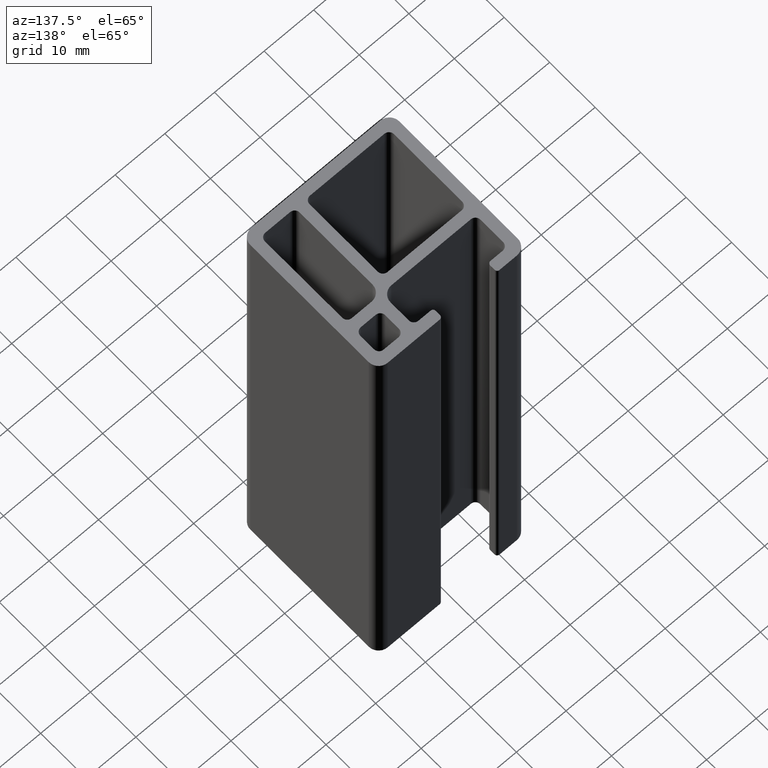
[diagram: clean part render]
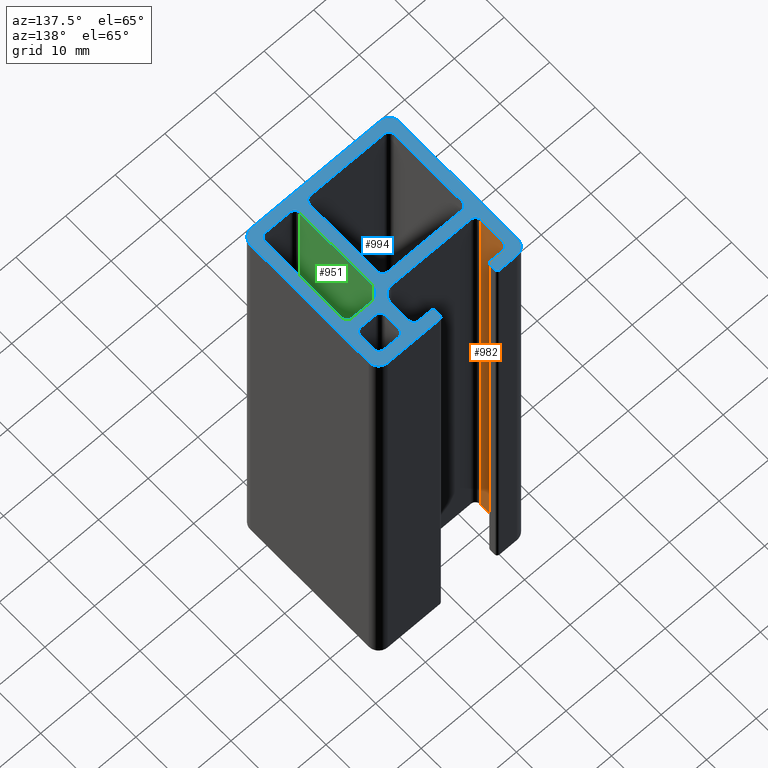
[diagram: same view with three faces highlighted in distinct colors, each labeled with its STEP entity id]
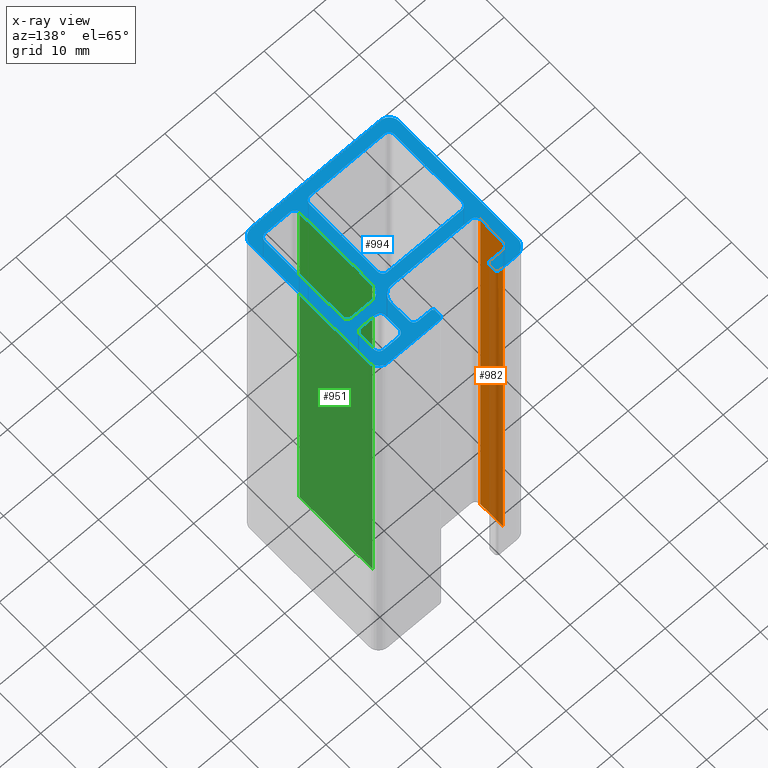
[diagram: x-ray of the same camera — body ghosted, the three highlighted faces saturated]
A machine part, auxiliary view with three faces highlighted in distinct colors.
The next image is the same camera in x-ray (body ghosted, the three faces saturated) — at least one of them is partly hidden behind the body in this view.
Their STEP definitions:

[orange] entity #982 — the highlighted planar face has unit normal (-1, -0, 0).
#130=FACE_OUTER_BOUND('',#180,.T.);
#180=EDGE_LOOP('',(#779,#780,#781,#782));
#273=LINE('',#1616,#369);
#274=LINE('',#1620,#370);
#275=LINE('',#1622,#371);
#276=LINE('',#1623,#372);
#369=VECTOR('',#1319,100.);
#370=VECTOR('',#1324,5.);
#371=VECTOR('',#1325,100.);
#372=VECTOR('',#1326,5.);
#467=VERTEX_POINT('',#1613);
#468=VERTEX_POINT('',#1615);
#469=VERTEX_POINT('',#1619);
#470=VERTEX_POINT('',#1621);
#598=EDGE_CURVE('',#468,#467,#273,.T.);
#600=EDGE_CURVE('',#469,#467,#274,.T.);
#601=EDGE_CURVE('',#470,#469,#275,.T.);
#602=EDGE_CURVE('',#468,#470,#276,.T.);
#779=ORIENTED_EDGE('',*,*,#600,.F.);
#780=ORIENTED_EDGE('',*,*,#601,.F.);
#781=ORIENTED_EDGE('',*,*,#602,.F.);
#782=ORIENTED_EDGE('',*,*,#598,.T.);
#937=PLANE('',#1072);
#982=ADVANCED_FACE('',(#130),#937,.F.);
#1072=AXIS2_PLACEMENT_3D('',#1618,#1322,#1323);
#1319=DIRECTION('',(0.,0.,1.));
#1322=DIRECTION('center_axis',(-1.,-4.44089209850062E-16,0.));
#1323=DIRECTION('ref_axis',(3.5527136788005E-16,-1.,0.));
#1324=DIRECTION('',(-4.44089209850062E-16,1.,0.));
#1325=DIRECTION('',(0.,0.,1.));
#1326=DIRECTION('',(4.44089209850062E-16,-1.,0.));
#1613=CARTESIAN_POINT('',(-13.,12.,100.));
#1615=CARTESIAN_POINT('',(-13.,12.,0.));
#1616=CARTESIAN_POINT('',(-13.,12.,0.));
#1618=CARTESIAN_POINT('Origin',(-13.,12.,0.));
#1619=CARTESIAN_POINT('',(-13.,7.,100.));
#1620=CARTESIAN_POINT('',(-13.,6.00000000019473,100.));
#1621=CARTESIAN_POINT('',(-13.,7.,0.));
#1622=CARTESIAN_POINT('',(-13.,7.,0.));
#1623=CARTESIAN_POINT('',(-13.,6.00000000019473,0.));

[blue] entity #994 — the highlighted planar face has unit normal (0, 0, 1).
#18=FACE_BOUND('',#196,.T.);
#19=FACE_BOUND('',#197,.T.);
#20=FACE_BOUND('',#198,.T.);
#21=CIRCLE('',#999,1.);
#23=CIRCLE('',#1003,1.);
#25=CIRCLE('',#1007,1.);
#27=CIRCLE('',#1011,2.);
#29=CIRCLE('',#1014,1.);
#31=CIRCLE('',#1018,1.);
#33=CIRCLE('',#1022,1.);
#35=CIRCLE('',#1026,1.);
#37=CIRCLE('',#1031,1.);
#39=CIRCLE('',#1035,1.);
#41=CIRCLE('',#1039,1.);
#43=CIRCLE('',#1043,1.);
#45=CIRCLE('',#1047,2.);
#47=CIRCLE('',#1051,1.);
#49=CIRCLE('',#1055,0.5);
#51=CIRCLE('',#1059,0.5);
#53=CIRCLE('',#1062,0.5);
#55=CIRCLE('',#1066,0.5);
#57=CIRCLE('',#1070,1.);
#59=CIRCLE('',#1074,1.);
#65=CIRCLE('',#1084,2.00000000847673);
#66=CIRCLE('',#1087,2.00000000847673);
#67=CIRCLE('',#1090,2.00000000847673);
#68=CIRCLE('',#1093,2.00000000847673);
#142=FACE_OUTER_BOUND('',#195,.T.);
#195=EDGE_LOOP('',(#871,#872,#873,#874,#875,#876,#877,#878,#879,#880,#881,
#882,#883,#884,#885,#886,#887,#888,#889,#890,#891,#892,#893,#894));
#196=EDGE_LOOP('',(#895,#896,#897,#898,#899,#900,#901,#902));
#197=EDGE_LOOP('',(#903,#904,#905,#906,#907,#908,#909,#910));
#198=EDGE_LOOP('',(#911,#912,#913,#914,#915,#916,#917,#918));
#199=LINE('',#1393,#295);
#204=LINE('',#1407,#300);
#208=LINE('',#1419,#304);
#212=LINE('',#1431,#308);
#217=LINE('',#1449,#313);
#221=LINE('',#1461,#317);
#225=LINE('',#1473,#321);
#229=LINE('',#1484,#325);
#231=LINE('',#1489,#327);
#236=LINE('',#1503,#332);
#240=LINE('',#1515,#336);
#244=LINE('',#1527,#340);
#247=LINE('',#1537,#343);
#252=LINE('',#1551,#348);
#256=LINE('',#1563,#352);
#260=LINE('',#1575,#356);
#266=LINE('',#1596,#362);
#270=LINE('',#1608,#366);
#274=LINE('',#1620,#370);
#277=LINE('',#1629,#373);
#285=LINE('',#1652,#381);
#287=LINE('',#1659,#383);
#290=LINE('',#1667,#386);
#293=LINE('',#1675,#389);
#295=VECTOR('',#1099,4.);
#300=VECTOR('',#1112,17.);
#304=VECTOR('',#1124,5.);
#308=VECTOR('',#1136,16.);
#313=VECTOR('',#1155,15.);
#317=VECTOR('',#1167,15.);
#321=VECTOR('',#1179,15.);
#325=VECTOR('',#1191,15.);
#327=VECTOR('',#1195,3.);
#332=VECTOR('',#1208,2.99999999999999);
#336=VECTOR('',#1220,3.);
#340=VECTOR('',#1232,3.);
#343=VECTOR('',#1243,16.);
#348=VECTOR('',#1256,4.);
#352=VECTOR('',#1268,2.5);
#356=VECTOR('',#1280,0.999999999999999);
#362=VECTOR('',#1300,0.999999999999999);
#366=VECTOR('',#1312,2.5);
#370=VECTOR('',#1324,5.);
#373=VECTOR('',#1335,10.4999999917376);
#381=VECTOR('',#1355,3.49999999152327);
#383=VECTOR('',#1363,25.9999999739653);
#386=VECTOR('',#1372,25.9999999830465);
#389=VECTOR('',#1381,25.9999999741351);
#391=VERTEX_POINT('',#1391);
#392=VERTEX_POINT('',#1392);
#395=VERTEX_POINT('',#1400);
#397=VERTEX_POINT('',#1406);
#399=VERTEX_POINT('',#1412);
#401=VERTEX_POINT('',#1418);
#403=VERTEX_POINT('',#1424);
#405=VERTEX_POINT('',#1430);
#407=VERTEX_POINT('',#1439);
#408=VERTEX_POINT('',#1440);
#411=VERTEX_POINT('',#1448);
#413=VERTEX_POINT('',#1454);
#415=VERTEX_POINT('',#1460);
#417=VERTEX_POINT('',#1466);
#419=VERTEX_POINT('',#1472);
#421=VERTEX_POINT('',#1478);
#423=VERTEX_POINT('',#1487);
#424=VERTEX_POINT('',#1488);
#427=VERTEX_POINT('',#1496);
#429=VERTEX_POINT('',#1502);
#431=VERTEX_POINT('',#1508);
#433=VERTEX_POINT('',#1514);
#435=VERTEX_POINT('',#1520);
#437=VERTEX_POINT('',#1526);
#439=VERTEX_POINT('',#1535);
#440=VERTEX_POINT('',#1536);
#443=VERTEX_POINT('',#1544);
#445=VERTEX_POINT('',#1550);
#447=VERTEX_POINT('',#1556);
#449=VERTEX_POINT('',#1562);
#451=VERTEX_POINT('',#1568);
#453=VERTEX_POINT('',#1574);
#455=VERTEX_POINT('',#1580);
#457=VERTEX_POINT('',#1586);
#458=VERTEX_POINT('',#1587);
#461=VERTEX_POINT('',#1595);
#463=VERTEX_POINT('',#1601);
#465=VERTEX_POINT('',#1607);
#467=VERTEX_POINT('',#1613);
#469=VERTEX_POINT('',#1619);
#471=VERTEX_POINT('',#1628);
#480=VERTEX_POINT('',#1650);
#481=VERTEX_POINT('',#1654);
#482=VERTEX_POINT('',#1658);
#483=VERTEX_POINT('',#1662);
#484=VERTEX_POINT('',#1666);
#485=VERTEX_POINT('',#1670);
#486=VERTEX_POINT('',#1674);
#487=EDGE_CURVE('',#391,#392,#199,.T.);
#491=EDGE_CURVE('',#392,#395,#21,.T.);
#494=EDGE_CURVE('',#395,#397,#204,.T.);
#497=EDGE_CURVE('',#397,#399,#23,.T.);
#500=EDGE_CURVE('',#399,#401,#208,.T.);
#503=EDGE_CURVE('',#401,#403,#25,.T.);
#506=EDGE_CURVE('',#403,#405,#212,.T.);
#509=EDGE_CURVE('',#405,#391,#27,.T.);
#511=EDGE_CURVE('',#407,#408,#29,.T.);
#515=EDGE_CURVE('',#411,#407,#217,.T.);
#518=EDGE_CURVE('',#413,#411,#31,.T.);
#521=EDGE_CURVE('',#415,#413,#221,.T.);
#524=EDGE_CURVE('',#417,#415,#33,.T.);
#527=EDGE_CURVE('',#419,#417,#225,.T.);
#530=EDGE_CURVE('',#421,#419,#35,.T.);
#533=EDGE_CURVE('',#408,#421,#229,.T.);
#535=EDGE_CURVE('',#423,#424,#231,.T.);
#539=EDGE_CURVE('',#424,#427,#37,.T.);
#542=EDGE_CURVE('',#427,#429,#236,.T.);
#545=EDGE_CURVE('',#429,#431,#39,.T.);
#548=EDGE_CURVE('',#431,#433,#240,.T.);
#551=EDGE_CURVE('',#433,#435,#41,.T.);
#554=EDGE_CURVE('',#435,#437,#244,.T.);
#557=EDGE_CURVE('',#437,#423,#43,.T.);
#559=EDGE_CURVE('',#439,#440,#247,.T.);
#563=EDGE_CURVE('',#443,#439,#45,.T.);
#566=EDGE_CURVE('',#445,#443,#252,.T.);
#569=EDGE_CURVE('',#447,#445,#47,.T.);
#572=EDGE_CURVE('',#449,#447,#256,.T.);
#575=EDGE_CURVE('',#451,#449,#49,.T.);
#578=EDGE_CURVE('',#453,#451,#260,.T.);
#581=EDGE_CURVE('',#455,#453,#51,.T.);
#584=EDGE_CURVE('',#457,#458,#53,.T.);
#588=EDGE_CURVE('',#461,#457,#266,.T.);
#591=EDGE_CURVE('',#463,#461,#55,.T.);
#594=EDGE_CURVE('',#465,#463,#270,.T.);
#597=EDGE_CURVE('',#467,#465,#57,.T.);
#600=EDGE_CURVE('',#469,#467,#274,.T.);
#603=EDGE_CURVE('',#440,#469,#59,.T.);
#605=EDGE_CURVE('',#455,#471,#277,.T.);
#617=EDGE_CURVE('',#480,#458,#285,.T.);
#618=EDGE_CURVE('',#471,#481,#65,.T.);
#620=EDGE_CURVE('',#481,#482,#287,.T.);
#622=EDGE_CURVE('',#482,#483,#66,.T.);
#624=EDGE_CURVE('',#483,#484,#290,.T.);
#626=EDGE_CURVE('',#484,#485,#67,.T.);
#628=EDGE_CURVE('',#485,#486,#293,.T.);
#630=EDGE_CURVE('',#486,#480,#68,.T.);
#871=ORIENTED_EDGE('',*,*,#584,.T.);
#872=ORIENTED_EDGE('',*,*,#617,.F.);
#873=ORIENTED_EDGE('',*,*,#630,.F.);
#874=ORIENTED_EDGE('',*,*,#628,.F.);
#875=ORIENTED_EDGE('',*,*,#626,.F.);
#876=ORIENTED_EDGE('',*,*,#624,.F.);
#877=ORIENTED_EDGE('',*,*,#622,.F.);
#878=ORIENTED_EDGE('',*,*,#620,.F.);
#879=ORIENTED_EDGE('',*,*,#618,.F.);
#880=ORIENTED_EDGE('',*,*,#605,.F.);
#881=ORIENTED_EDGE('',*,*,#581,.T.);
#882=ORIENTED_EDGE('',*,*,#578,.T.);
#883=ORIENTED_EDGE('',*,*,#575,.T.);
#884=ORIENTED_EDGE('',*,*,#572,.T.);
#885=ORIENTED_EDGE('',*,*,#569,.T.);
#886=ORIENTED_EDGE('',*,*,#566,.T.);
#887=ORIENTED_EDGE('',*,*,#563,.T.);
#888=ORIENTED_EDGE('',*,*,#559,.T.);
#889=ORIENTED_EDGE('',*,*,#603,.T.);
#890=ORIENTED_EDGE('',*,*,#600,.T.);
#891=ORIENTED_EDGE('',*,*,#597,.T.);
#892=ORIENTED_EDGE('',*,*,#594,.T.);
#893=ORIENTED_EDGE('',*,*,#591,.T.);
#894=ORIENTED_EDGE('',*,*,#588,.T.);
#895=ORIENTED_EDGE('',*,*,#487,.T.);
#896=ORIENTED_EDGE('',*,*,#491,.T.);
#897=ORIENTED_EDGE('',*,*,#494,.T.);
#898=ORIENTED_EDGE('',*,*,#497,.T.);
#899=ORIENTED_EDGE('',*,*,#500,.T.);
#900=ORIENTED_EDGE('',*,*,#503,.T.);
#901=ORIENTED_EDGE('',*,*,#506,.T.);
#902=ORIENTED_EDGE('',*,*,#509,.T.);
#903=ORIENTED_EDGE('',*,*,#511,.T.);
#904=ORIENTED_EDGE('',*,*,#533,.T.);
#905=ORIENTED_EDGE('',*,*,#530,.T.);
#906=ORIENTED_EDGE('',*,*,#527,.T.);
#907=ORIENTED_EDGE('',*,*,#524,.T.);
#908=ORIENTED_EDGE('',*,*,#521,.T.);
#909=ORIENTED_EDGE('',*,*,#518,.T.);
#910=ORIENTED_EDGE('',*,*,#515,.T.);
#911=ORIENTED_EDGE('',*,*,#535,.T.);
#912=ORIENTED_EDGE('',*,*,#539,.T.);
#913=ORIENTED_EDGE('',*,*,#542,.T.);
#914=ORIENTED_EDGE('',*,*,#545,.T.);
#915=ORIENTED_EDGE('',*,*,#548,.T.);
#916=ORIENTED_EDGE('',*,*,#551,.T.);
#917=ORIENTED_EDGE('',*,*,#554,.T.);
#918=ORIENTED_EDGE('',*,*,#557,.T.);
#944=PLANE('',#1094);
#994=ADVANCED_FACE('',(#142,#18,#19,#20),#944,.T.);
#999=AXIS2_PLACEMENT_3D('',#1401,#1105,#1106);
#1003=AXIS2_PLACEMENT_3D('',#1413,#1117,#1118);
#1007=AXIS2_PLACEMENT_3D('',#1425,#1129,#1130);
#1011=AXIS2_PLACEMENT_3D('',#1436,#1141,#1142);
#1014=AXIS2_PLACEMENT_3D('',#1441,#1147,#1148);
#1018=AXIS2_PLACEMENT_3D('',#1455,#1160,#1161);
#1022=AXIS2_PLACEMENT_3D('',#1467,#1172,#1173);
#1026=AXIS2_PLACEMENT_3D('',#1479,#1184,#1185);
#1031=AXIS2_PLACEMENT_3D('',#1497,#1201,#1202);
#1035=AXIS2_PLACEMENT_3D('',#1509,#1213,#1214);
#1039=AXIS2_PLACEMENT_3D('',#1521,#1225,#1226);
#1043=AXIS2_PLACEMENT_3D('',#1532,#1237,#1238);
#1047=AXIS2_PLACEMENT_3D('',#1545,#1249,#1250);
#1051=AXIS2_PLACEMENT_3D('',#1557,#1261,#1262);
#1055=AXIS2_PLACEMENT_3D('',#1569,#1273,#1274);
#1059=AXIS2_PLACEMENT_3D('',#1581,#1285,#1286);
#1062=AXIS2_PLACEMENT_3D('',#1588,#1292,#1293);
#1066=AXIS2_PLACEMENT_3D('',#1602,#1305,#1306);
#1070=AXIS2_PLACEMENT_3D('',#1614,#1317,#1318);
#1074=AXIS2_PLACEMENT_3D('',#1625,#1329,#1330);
#1084=AXIS2_PLACEMENT_3D('',#1655,#1358,#1359);
#1087=AXIS2_PLACEMENT_3D('',#1663,#1367,#1368);
#1090=AXIS2_PLACEMENT_3D('',#1671,#1376,#1377);
#1093=AXIS2_PLACEMENT_3D('',#1678,#1385,#1386);
#1094=AXIS2_PLACEMENT_3D('',#1679,#1387,#1388);
#1099=DIRECTION('',(1.,2.77555756156289E-16,0.));
#1105=DIRECTION('center_axis',(0.,0.,-1.));
#1106=DIRECTION('ref_axis',(-1.,0.,0.));
#1112=DIRECTION('',(5.2245789394125E-16,-1.,0.));
#1117=DIRECTION('center_axis',(0.,0.,-1.));
#1118=DIRECTION('ref_axis',(0.,1.,0.));
#1124=DIRECTION('',(-1.,0.,0.));
#1129=DIRECTION('center_axis',(0.,0.,-1.));
#1130=DIRECTION('ref_axis',(1.,0.,0.));
#1136=DIRECTION('',(0.,1.,0.));
#1141=DIRECTION('center_axis',(0.,0.,-1.));
#1142=DIRECTION('ref_axis',(0.,-1.,0.));
#1147=DIRECTION('center_axis',(0.,0.,-1.));
#1148=DIRECTION('ref_axis',(1.,1.11022302462516E-15,0.));
#1155=DIRECTION('',(1.,7.7715611723761E-16,0.));
#1160=DIRECTION('center_axis',(0.,0.,-1.));
#1161=DIRECTION('ref_axis',(0.,1.,0.));
#1167=DIRECTION('',(-5.9211894646675E-16,1.,0.));
#1172=DIRECTION('center_axis',(0.,0.,-1.));
#1173=DIRECTION('ref_axis',(-1.,0.,0.));
#1179=DIRECTION('',(-1.,-5.9211894646675E-16,0.));
#1184=DIRECTION('center_axis',(0.,0.,-1.));
#1185=DIRECTION('ref_axis',(1.11022302462516E-15,-1.,0.));
#1191=DIRECTION('',(7.77156117237609E-16,-1.,0.));
#1195=DIRECTION('',(0.,1.,0.));
#1201=DIRECTION('center_axis',(0.,0.,-1.));
#1202=DIRECTION('ref_axis',(0.,-1.,0.));
#1208=DIRECTION('',(1.,2.22044604925032E-15,0.));
#1213=DIRECTION('center_axis',(0.,0.,-1.));
#1214=DIRECTION('ref_axis',(-1.,0.,0.));
#1220=DIRECTION('',(2.22044604925031E-15,-1.,0.));
#1225=DIRECTION('center_axis',(0.,0.,-1.));
#1226=DIRECTION('ref_axis',(0.,1.,0.));
#1232=DIRECTION('',(-1.,-3.70074341541719E-16,0.));
#1237=DIRECTION('center_axis',(0.,0.,-1.));
#1238=DIRECTION('ref_axis',(1.,0.,0.));
#1243=DIRECTION('',(-1.,-2.77555756156289E-16,0.));
#1249=DIRECTION('center_axis',(0.,0.,-1.));
#1250=DIRECTION('ref_axis',(2.77555756156289E-16,-1.,0.));
#1256=DIRECTION('',(2.77555756156289E-16,-1.,0.));
#1261=DIRECTION('center_axis',(0.,0.,-1.));
#1262=DIRECTION('ref_axis',(1.,0.,0.));
#1268=DIRECTION('',(1.,1.77635683940025E-15,0.));
#1273=DIRECTION('center_axis',(0.,0.,1.));
#1274=DIRECTION('ref_axis',(1.,0.,0.));
#1280=DIRECTION('',(-5.55111512312579E-16,-1.,0.));
#1285=DIRECTION('center_axis',(0.,0.,1.));
#1286=DIRECTION('ref_axis',(0.,-1.,0.));
#1292=DIRECTION('center_axis',(0.,0.,1.));
#1293=DIRECTION('ref_axis',(-1.,0.,0.));
#1300=DIRECTION('',(-1.11022302462516E-15,1.,0.));
#1305=DIRECTION('center_axis',(0.,0.,1.));
#1306=DIRECTION('ref_axis',(0.,1.,0.));
#1312=DIRECTION('',(1.,-1.77635683940025E-15,0.));
#1317=DIRECTION('center_axis',(0.,0.,-1.));
#1318=DIRECTION('ref_axis',(0.,1.,0.));
#1324=DIRECTION('',(-4.44089209850062E-16,1.,0.));
#1329=DIRECTION('center_axis',(0.,0.,-1.));
#1330=DIRECTION('ref_axis',(-1.,0.,0.));
#1335=DIRECTION('',(1.,-1.51799940237017E-11,0.));
#1355=DIRECTION('',(1.,-1.51799940237017E-11,0.));
#1358=DIRECTION('center_axis',(0.,0.,-1.));
#1359=DIRECTION('ref_axis',(-1.,3.84254848573491E-10,0.));
#1363=DIRECTION('',(2.97539770897479E-11,-1.,0.));
#1367=DIRECTION('center_axis',(0.,0.,-1.));
#1368=DIRECTION('ref_axis',(0.,1.,0.));
#1372=DIRECTION('',(-1.,0.,0.));
#1376=DIRECTION('center_axis',(0.,0.,-1.));
#1377=DIRECTION('ref_axis',(1.,0.,0.));
#1381=DIRECTION('',(0.,1.,0.));
#1385=DIRECTION('center_axis',(0.,0.,-1.));
#1386=DIRECTION('ref_axis',(0.,-1.,0.));
#1387=DIRECTION('center_axis',(0.,0.,1.));
#1388=DIRECTION('ref_axis',(1.,0.,0.));
#1391=CARTESIAN_POINT('',(8.,6.00000000000001,100.));
#1392=CARTESIAN_POINT('',(12.,6.00000000000001,100.));
#1393=CARTESIAN_POINT('',(6.,6.00000000000001,100.));
#1400=CARTESIAN_POINT('',(13.,5.00000000000001,100.));
#1401=CARTESIAN_POINT('Origin',(12.,5.00000000000001,100.));
#1406=CARTESIAN_POINT('',(13.,-12.,100.));
#1407=CARTESIAN_POINT('',(13.,-5.99999999980526,100.));
#1412=CARTESIAN_POINT('',(12.,-13.,100.));
#1413=CARTESIAN_POINT('Origin',(12.,-12.,100.));
#1418=CARTESIAN_POINT('',(7.,-13.,100.));
#1419=CARTESIAN_POINT('',(3.5,-13.,100.));
#1424=CARTESIAN_POINT('',(6.,-12.,100.));
#1425=CARTESIAN_POINT('Origin',(7.,-12.,100.));
#1430=CARTESIAN_POINT('',(6.,4.,100.));
#1431=CARTESIAN_POINT('',(6.,2.00000000019474,100.));
#1436=CARTESIAN_POINT('Origin',(8.,4.,100.));
#1439=CARTESIAN_POINT('',(3.,4.00000000000001,100.));
#1440=CARTESIAN_POINT('',(4.,3.00000000000001,100.));
#1441=CARTESIAN_POINT('Origin',(3.,3.00000000000001,100.));
#1448=CARTESIAN_POINT('',(-12.,4.,100.));
#1449=CARTESIAN_POINT('',(1.5,4.00000000000001,100.));
#1454=CARTESIAN_POINT('',(-13.,3.,100.));
#1455=CARTESIAN_POINT('Origin',(-12.,3.,100.));
#1460=CARTESIAN_POINT('',(-13.,-12.,100.));
#1461=CARTESIAN_POINT('',(-13.,1.50000000019473,100.));
#1466=CARTESIAN_POINT('',(-12.,-13.,100.));
#1467=CARTESIAN_POINT('Origin',(-12.,-12.,100.));
#1472=CARTESIAN_POINT('',(3.00000000000001,-13.,100.));
#1473=CARTESIAN_POINT('',(-6.,-13.,100.));
#1478=CARTESIAN_POINT('',(4.00000000000001,-12.,100.));
#1479=CARTESIAN_POINT('Origin',(3.00000000000001,-12.,100.));
#1484=CARTESIAN_POINT('',(4.,-5.99999999980526,100.));
#1487=CARTESIAN_POINT('',(8.,9.,100.));
#1488=CARTESIAN_POINT('',(8.,12.,100.));
#1489=CARTESIAN_POINT('',(8.,6.00000000019473,100.));
#1496=CARTESIAN_POINT('',(9.,13.,100.));
#1497=CARTESIAN_POINT('Origin',(9.,12.,100.));
#1502=CARTESIAN_POINT('',(12.,13.,100.));
#1503=CARTESIAN_POINT('',(5.99999999999998,13.,100.));
#1508=CARTESIAN_POINT('',(13.,12.,100.));
#1509=CARTESIAN_POINT('Origin',(12.,12.,100.));
#1514=CARTESIAN_POINT('',(13.,9.,100.));
#1515=CARTESIAN_POINT('',(13.,4.50000000019475,100.));
#1520=CARTESIAN_POINT('',(12.,8.,100.));
#1521=CARTESIAN_POINT('Origin',(12.,9.,100.));
#1526=CARTESIAN_POINT('',(9.,8.,100.));
#1527=CARTESIAN_POINT('',(4.5,8.,100.));
#1532=CARTESIAN_POINT('Origin',(9.,9.,100.));
#1535=CARTESIAN_POINT('',(4.,6.00000000000001,100.));
#1536=CARTESIAN_POINT('',(-12.,6.,100.));
#1537=CARTESIAN_POINT('',(-6.,6.00000000000001,100.));
#1544=CARTESIAN_POINT('',(6.,8.00000000000001,100.));
#1545=CARTESIAN_POINT('Origin',(4.,8.00000000000001,100.));
#1550=CARTESIAN_POINT('',(6.,12.,100.));
#1551=CARTESIAN_POINT('',(6.,4.00000000019474,100.));
#1556=CARTESIAN_POINT('',(5.,13.,100.));
#1557=CARTESIAN_POINT('Origin',(5.,12.,100.));
#1562=CARTESIAN_POINT('',(2.5,13.,100.));
#1563=CARTESIAN_POINT('',(2.49999999999999,13.,100.));
#1568=CARTESIAN_POINT('',(2.,13.5,100.));
#1569=CARTESIAN_POINT('Origin',(2.5,13.5,100.));
#1574=CARTESIAN_POINT('',(2.,14.5,100.));
#1575=CARTESIAN_POINT('',(2.,6.75000000019473,100.));
#1580=CARTESIAN_POINT('',(2.5,15.,100.));
#1581=CARTESIAN_POINT('Origin',(2.5,14.5,100.));
#1586=CARTESIAN_POINT('',(-9.,14.5,100.));
#1587=CARTESIAN_POINT('',(-9.5,15.,100.));
#1588=CARTESIAN_POINT('Origin',(-9.5,14.5,100.));
#1595=CARTESIAN_POINT('',(-9.,13.5,100.));
#1596=CARTESIAN_POINT('',(-8.99999999999999,7.25000000019473,100.));
#1601=CARTESIAN_POINT('',(-9.5,13.,100.));
#1602=CARTESIAN_POINT('Origin',(-9.5,13.5,100.));
#1607=CARTESIAN_POINT('',(-12.,13.,100.));
#1608=CARTESIAN_POINT('',(-4.74999999999999,13.,100.));
#1613=CARTESIAN_POINT('',(-13.,12.,100.));
#1614=CARTESIAN_POINT('Origin',(-12.,12.,100.));
#1619=CARTESIAN_POINT('',(-13.,7.,100.));
#1620=CARTESIAN_POINT('',(-13.,6.00000000019473,100.));
#1625=CARTESIAN_POINT('Origin',(-12.,7.,100.));
#1628=CARTESIAN_POINT('',(12.9999999917377,14.9999999959286,100.));
#1629=CARTESIAN_POINT('',(6.49999999598268,14.9999999960272,100.));
#1650=CARTESIAN_POINT('',(-12.9999999915233,14.9999999963232,100.));
#1652=CARTESIAN_POINT('',(6.49999999598268,14.9999999960272,100.));
#1654=CARTESIAN_POINT('',(14.9999999992264,12.9999999868977,100.));
#1655=CARTESIAN_POINT('Origin',(12.9999999909641,12.9999999876662,100.));
#1658=CARTESIAN_POINT('',(15.,-12.9999999870676,100.));
#1659=CARTESIAN_POINT('',(14.9999999998066,-6.4999999931159,100.));
#1662=CARTESIAN_POINT('',(12.9999999915233,-14.9999999955443,100.));
#1663=CARTESIAN_POINT('Origin',(12.9999999915233,-12.9999999870676,100.));
#1666=CARTESIAN_POINT('',(-12.9999999915233,-14.9999999955443,100.));
#1667=CARTESIAN_POINT('',(-6.49999999576163,-14.9999999955443,100.));
#1670=CARTESIAN_POINT('',(-15.,-12.9999999870676,100.));
#1671=CARTESIAN_POINT('Origin',(-12.9999999915233,-12.9999999870676,100.));
#1674=CARTESIAN_POINT('',(-15.,12.9999999870676,100.));
#1675=CARTESIAN_POINT('',(-15.,6.49999999372852,100.));
#1678=CARTESIAN_POINT('Origin',(-12.9999999915233,12.9999999878465,100.));
#1679=CARTESIAN_POINT('Origin',(0.,3.89466237038505E-10,100.));

[green] entity #951 — the highlighted planar face has unit normal (-1, 0, 0).
#99=FACE_OUTER_BOUND('',#149,.T.);
#149=EDGE_LOOP('',(#655,#656,#657,#658));
#211=LINE('',#1428,#307);
#212=LINE('',#1431,#308);
#213=LINE('',#1433,#309);
#214=LINE('',#1434,#310);
#307=VECTOR('',#1133,100.);
#308=VECTOR('',#1136,16.);
#309=VECTOR('',#1137,16.);
#310=VECTOR('',#1138,100.);
#403=VERTEX_POINT('',#1424);
#404=VERTEX_POINT('',#1426);
#405=VERTEX_POINT('',#1430);
#406=VERTEX_POINT('',#1432);
#505=EDGE_CURVE('',#404,#403,#211,.T.);
#506=EDGE_CURVE('',#403,#405,#212,.T.);
#507=EDGE_CURVE('',#406,#404,#213,.T.);
#508=EDGE_CURVE('',#406,#405,#214,.T.);
#655=ORIENTED_EDGE('',*,*,#506,.F.);
#656=ORIENTED_EDGE('',*,*,#505,.F.);
#657=ORIENTED_EDGE('',*,*,#507,.F.);
#658=ORIENTED_EDGE('',*,*,#508,.T.);
#922=PLANE('',#1009);
#951=ADVANCED_FACE('',(#99),#922,.F.);
#1009=AXIS2_PLACEMENT_3D('',#1429,#1134,#1135);
#1133=DIRECTION('',(0.,0.,1.));
#1134=DIRECTION('center_axis',(-1.,0.,0.));
#1135=DIRECTION('ref_axis',(0.,-1.,0.));
#1136=DIRECTION('',(0.,1.,0.));
#1137=DIRECTION('',(0.,-1.,0.));
#1138=DIRECTION('',(0.,0.,1.));
#1424=CARTESIAN_POINT('',(6.,-12.,100.));
#1426=CARTESIAN_POINT('',(6.,-12.,0.));
#1428=CARTESIAN_POINT('',(6.,-12.,0.));
#1429=CARTESIAN_POINT('Origin',(6.,4.00000000000001,0.));
#1430=CARTESIAN_POINT('',(6.,4.,100.));
#1431=CARTESIAN_POINT('',(6.,2.00000000019474,100.));
#1432=CARTESIAN_POINT('',(6.,4.,0.));
#1433=CARTESIAN_POINT('',(6.,2.00000000019474,0.));
#1434=CARTESIAN_POINT('',(6.,4.,0.));